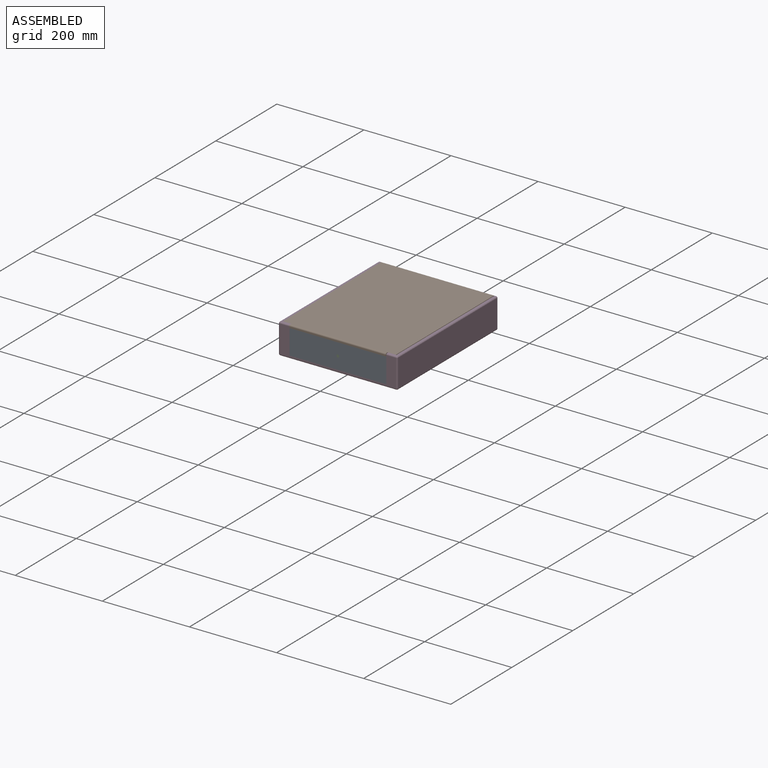
[diagram: assembled view]
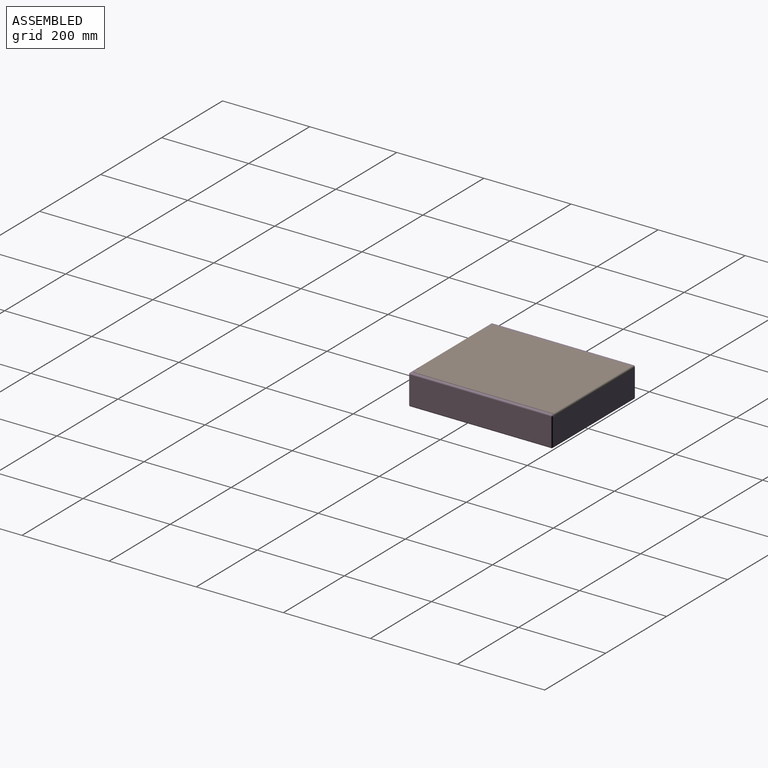
[diagram: assembled view, second angle]
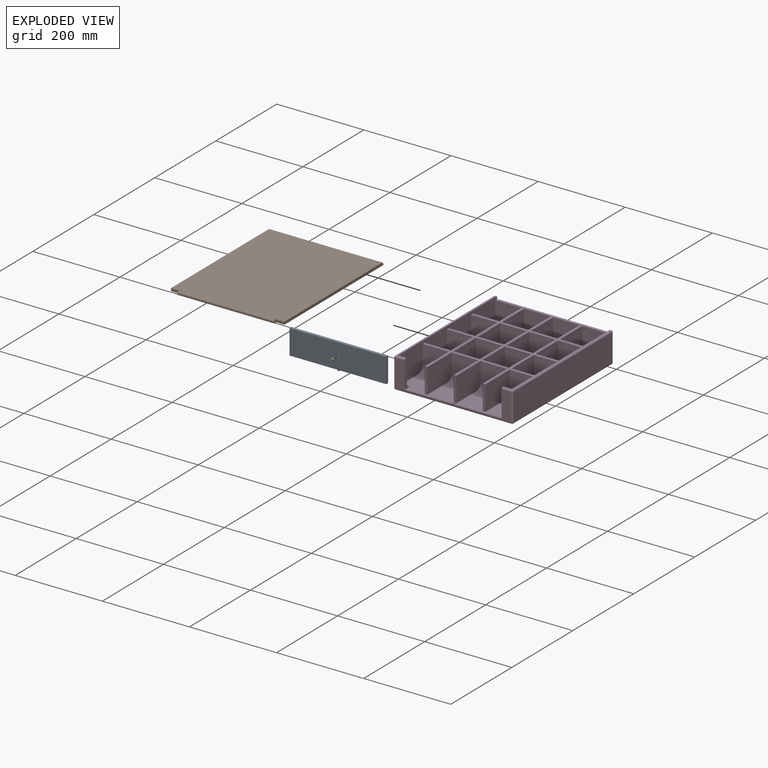
[diagram: exploded view]
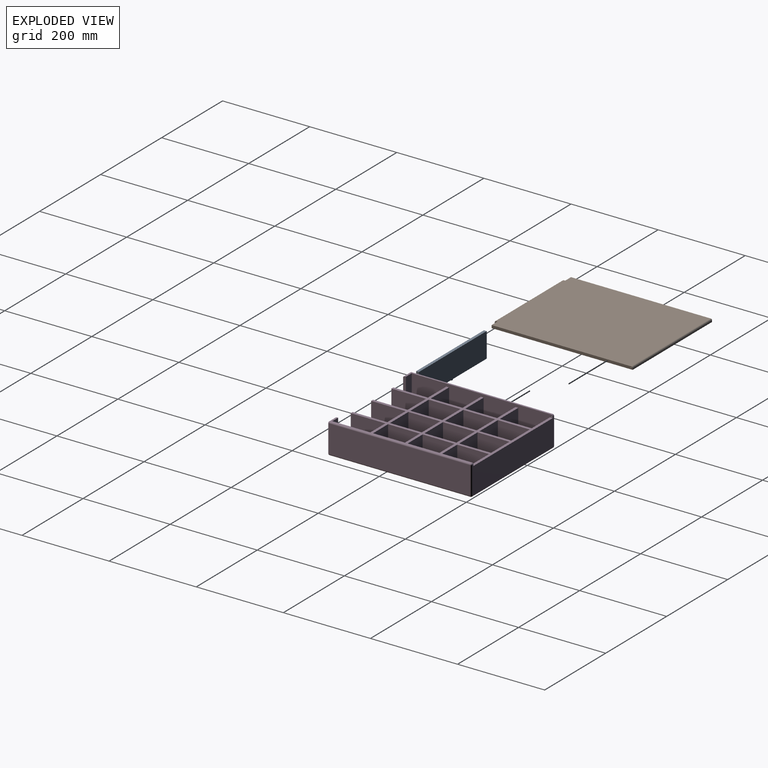
[diagram: exploded view, second angle]
ASSEMBLY  parts=4 mates=5
PART A: 13 faces, bbox 222.3x6.4x59.7 mm
  f0: plane 57.15x6.35mm, normal (-1,0,0), area 362.9mm2, adj f1,f3,f4,f5
  f1: plane 222.25x57.15mm, normal (0,-1,0), area 12669.9mm2, adj f0,f2,f4,f5,f11
  f2: plane 57.15x6.35mm, normal (1,0,0), area 362.9mm2, adj f1,f3,f4,f5
  f3: plane 222.25x57.15mm, normal (0,1,0), area 12701.6mm2, adj f0,f2,f4,f5
  f4: plane 222.25x6.35mm, normal (0,0,1), area 1411.3mm2, adj f0,f1,f2,f3
  f5: plane 222.25x6.35mm, normal (0,0,-1), area 1391.9mm2, adj f0,f1,f2,f3,f6,f7,f8,f9
  f6: plane 5.08x2.54mm, normal (0,-1,0), area 12.9mm2, adj f5,f7,f9,f10
  f7: plane 3.81x2.54mm, normal (-1,0,0), area 9.7mm2, adj f5,f6,f8,f10
  f8: plane 5.08x2.54mm, normal (0,1,0), area 12.9mm2, adj f5,f7,f9,f10
  f9: plane 3.81x2.54mm, normal (1,0,0), area 9.7mm2, adj f5,f6,f8,f10
  f10: plane 5.08x3.81mm, normal (0,0,-1), area 19.4mm2, adj f6,f7,f8,f9
  f11: cylinder r=3.17mm len=6.35mm, axis (0,-1,0), area 101.3mm2, adj f1,f12
  f12: plane 6.35x6.35mm, normal (0,-1,0), area 31.7mm2, adj f11
PART B: 16 faces, bbox 265.4x330.2x6.4 mm
  f0: plane 19.05x6.35mm, normal (0,-1,0), area 121mm2, adj f1,f7,f8,f9
  f1: plane 6.35x6.35mm, normal (-1,0,0), area 38.2mm2, adj f0,f2,f8,f9,f11
  f2: plane 222.25x3.18mm, normal (0,-1,0), area 705.6mm2, adj f1,f3,f9,f11
  f3: plane 6.35x6.35mm, normal (1,0,0), area 38.2mm2, adj f2,f4,f8,f9,f11
  f4: plane 19.05x6.35mm, normal (0,-1,0), area 121mm2, adj f3,f5,f8,f9
  f5: plane 323.85x6.35mm, normal (1,0,0), area 2049.2mm2, adj f4,f6,f8,f9,f10,f14
  f6: plane 260.35x3.18mm, normal (0,1,0), area 826.6mm2, adj f5,f7,f9,f10
  f7: plane 323.85x6.35mm, normal (-1,0,0), area 2049.2mm2, adj f0,f6,f8,f9,f10,f12
  f8: plane 323.85x260.35mm, normal (0,0,1), area 84193.4mm2, adj f0,f1,f3,f4,f5,f7,f10,f11
  f9: plane 330.2x260.35mm, normal (0,0,-1), area 85725.6mm2, adj f0,f1,f2,f3,f4,f5,f6,f7
  f10: cylinder r=3.17mm len=260.35mm, axis (1,0,0), area 1298.4mm2, adj f5,f6,f7,f8
  f11: cylinder r=3.17mm len=222.25mm, axis (-1,0,0), area 1108.4mm2, adj f1,f2,f3,f8
  f12: cylinder r=1.27mm len=2.54mm, axis (1,0,0), area 20.3mm2, adj f7,f13
  f13: plane 2.54x2.54mm, normal (-1,0,0), area 5.1mm2, adj f12
  f14: cylinder r=1.27mm len=2.54mm, axis (-1,0,0), area 20.3mm2, adj f5,f15
  f15: plane 2.54x2.54mm, normal (1,0,0), area 5.1mm2, adj f14
PART C: 3 faces, bbox 6.4x5.1x6.4 mm
  f0: cylinder r=3.17mm len=6.35mm, axis (0,1,0), area 101.3mm2, adj f1,f2
  f1: plane 6.35x6.35mm, normal (0,-1,0), area 31.7mm2, adj f0
  f2: plane 6.35x6.35mm, normal (0,1,0), area 31.7mm2, adj f0
PART D: 148 faces, bbox 273.1x330.2x69.9 mm
  f0: plane 60.33x47.63mm, normal (0,0,1), area 2873mm2, adj f64,f108,f109,f138
  f1: plane 60.33x47.63mm, normal (0,0,1), area 2873mm2, adj f64,f110,f111,f136
  f2: plane 60.33x47.63mm, normal (0,0,1), area 2873mm2, adj f64,f112,f114,f134
  f3: plane 60.33x44.45mm, normal (0,-1,0), area 2681.4mm2, adj f17,f92,f125,f135
  f4: plane 260.35x73.03mm, normal (0,0,1), area 16996.7mm2, adj f11,f28,f45,f53,f61,f64,f67,f68
  f5: plane 60.33x44.45mm, normal (0,1,0), area 2681.4mm2, adj f16,f92,f125,f135
  f6: plane 60.33x44.45mm, normal (0,-1,0), area 2681.4mm2, adj f15,f92,f127,f137
  f7: plane 60.33x44.45mm, normal (0,1,0), area 2681.4mm2, adj f14,f92,f127,f137
  f8: plane 60.33x44.45mm, normal (0,-1,0), area 2681.4mm2, adj f13,f92,f129,f139
  f9: plane 60.33x44.45mm, normal (0,1,0), area 2681.4mm2, adj f12,f92,f129,f139
  f10: plane 60.33x44.45mm, normal (0,-1,0), area 2681.4mm2, adj f11,f92,f132,f140
  f11: cylinder r=12.7mm len=60.33mm, axis (1,0,0), area 1203.4mm2, adj f4,f10,f132,f140
  f12: cylinder r=12.7mm len=60.33mm, axis (-1,0,0), area 1203.4mm2, adj f9,f18,f129,f139
  f13: cylinder r=12.7mm len=60.33mm, axis (1,0,0), area 1203.4mm2, adj f8,f18,f129,f139
  f14: cylinder r=12.7mm len=60.33mm, axis (-1,0,0), area 1203.4mm2, adj f7,f19,f127,f137
  f15: cylinder r=12.7mm len=60.33mm, axis (1,0,0), area 1203.4mm2, adj f6,f19,f127,f137
  f16: cylinder r=12.7mm len=60.33mm, axis (-1,0,0), area 1203.4mm2, adj f5,f20,f125,f135
  f17: cylinder r=12.7mm len=60.33mm, axis (-1,0,0), area 1203.4mm2, adj f3,f20,f125,f135
  f18: plane 60.33x47.63mm, normal (0,0,1), area 2873mm2, adj f12,f13,f129,f139
  f19: plane 60.33x47.63mm, normal (0,0,1), area 2873mm2, adj f14,f15,f127,f137
  f20: plane 60.33x47.63mm, normal (0,0,1), area 2873mm2, adj f16,f17,f125,f135
  f21: plane 60.33x44.45mm, normal (0,-1,0), area 2681.4mm2, adj f34,f92,f116,f126
  f22: plane 60.33x44.45mm, normal (0,1,0), area 2681.4mm2, adj f33,f92,f116,f126
  f23: plane 60.33x44.45mm, normal (0,-1,0), area 2681.4mm2, adj f32,f92,f118,f128
  f24: plane 60.33x44.45mm, normal (0,1,0), area 2681.4mm2, adj f31,f92,f118,f128
  f25: plane 60.33x44.45mm, normal (0,-1,0), area 2681.4mm2, adj f30,f92,f120,f130
  f26: plane 60.33x44.45mm, normal (0,1,0), area 2681.4mm2, adj f29,f92,f120,f130
  f27: plane 60.33x44.45mm, normal (0,-1,0), area 2681.4mm2, adj f28,f92,f122,f131
  f28: cylinder r=12.7mm len=60.33mm, axis (1,0,0), area 1203.4mm2, adj f4,f27,f122,f131
  f29: cylinder r=12.7mm len=60.33mm, axis (-1,0,0), area 1203.4mm2, adj f26,f35,f120,f130
  f30: cylinder r=12.7mm len=60.33mm, axis (1,0,0), area 1203.4mm2, adj f25,f35,f120,f130
  f31: cylinder r=12.7mm len=60.33mm, axis (-1,0,0), area 1203.4mm2, adj f24,f36,f118,f128
  f32: cylinder r=12.7mm len=60.33mm, axis (1,0,0), area 1203.4mm2, adj f23,f36,f118,f128
  f33: cylinder r=12.7mm len=60.33mm, axis (-1,0,0), area 1203.4mm2, adj f22,f37,f116,f126
  f34: cylinder r=12.7mm len=60.33mm, axis (-1,0,0), area 1203.4mm2, adj f21,f37,f116,f126
  f35: plane 60.33x47.63mm, normal (0,0,1), area 2873mm2, adj f29,f30,f120,f130
  f36: plane 60.33x47.63mm, normal (0,0,1), area 2873mm2, adj f31,f32,f118,f128
  f37: plane 60.33x47.63mm, normal (0,0,1), area 2873mm2, adj f33,f34,f116,f126
  f38: plane 60.33x44.45mm, normal (0,-1,0), area 2681.4mm2, adj f51,f53,f92,f117
  f39: plane 60.33x44.45mm, normal (0,1,0), area 2681.4mm2, adj f50,f53,f92,f117
  f40: plane 60.33x44.45mm, normal (0,-1,0), area 2681.4mm2, adj f49,f53,f92,f119
  f41: plane 60.33x44.45mm, normal (0,1,0), area 2681.4mm2, adj f48,f53,f92,f119
  f42: plane 60.33x44.45mm, normal (0,-1,0), area 2681.4mm2, adj f47,f53,f92,f121
  f43: plane 60.33x44.45mm, normal (0,1,0), area 2681.4mm2, adj f46,f53,f92,f121
  f44: plane 60.33x44.45mm, normal (0,-1,0), area 2681.4mm2, adj f45,f53,f92,f123
  f45: cylinder r=12.7mm len=60.33mm, axis (1,0,0), area 1203.4mm2, adj f4,f44,f53,f123
  f46: cylinder r=12.7mm len=60.33mm, axis (-1,0,0), area 1203.4mm2, adj f43,f52,f53,f121
  f47: cylinder r=12.7mm len=60.33mm, axis (1,0,0), area 1203.4mm2, adj f42,f52,f53,f121
  f48: cylinder r=12.7mm len=60.33mm, axis (-1,0,0), area 1203.4mm2, adj f41,f53,f54,f119
  f49: cylinder r=12.7mm len=60.33mm, axis (1,0,0), area 1203.4mm2, adj f40,f53,f54,f119
  f50: cylinder r=12.7mm len=60.33mm, axis (-1,0,0), area 1203.4mm2, adj f39,f53,f55,f117
  f51: cylinder r=12.7mm len=60.33mm, axis (-1,0,0), area 1203.4mm2, adj f38,f53,f55,f117
  f52: plane 60.33x47.63mm, normal (0,0,1), area 2873mm2, adj f46,f47,f53,f121
  f53: plane 323.85x63.5mm, normal (1,0,0), area 18828.7mm2, adj f4,f38,f39,f40,f41,f42,f43,f44
  f54: plane 60.33x47.63mm, normal (0,0,1), area 2873mm2, adj f48,f49,f53,f119
  f55: plane 60.33x47.63mm, normal (0,0,1), area 2873mm2, adj f50,f51,f53,f117
  f56: plane 323.85x22.23mm, normal (0,0,1), area 1088.7mm2, adj f64,f66,f68,f83,f86,f97
  f57: plane 266.7x63.5mm, normal (0,1,0), area 16108.8mm2, adj f53,f64,f71,f76,f81,f92,f97,f99
  f58: plane 323.85x22.23mm, normal (0,0,1), area 1088.7mm2, adj f53,f59,f67,f69,f70,f99
  f59: plane 50.8x19.05mm, normal (0,1,0), area 967.7mm2, adj f53,f58,f67,f113
  f60: plane 323.85x63.5mm, normal (-1,0,0), area 20564.5mm2, adj f69,f71,f74,f75
  f61: plane 266.7x63.5mm, normal (0,-1,0), area 3528.2mm2, adj f4,f67,f68,f70,f75,f80,f84,f86
  f62: plane 323.85x63.5mm, normal (1,0,0), area 20564.5mm2, adj f79,f81,f83,f84
  f63: plane 323.85x266.7mm, normal (0,0,-1), area 75403.1mm2, adj f74,f76,f79,f80,f143,f144,f146,f147
  f64: plane 323.85x63.5mm, normal (-1,0,0), area 18828.7mm2, adj f0,f1,f2,f4,f56,f57,f65,f66
  f65: plane 60.33x44.45mm, normal (0,-1,0), area 2681.4mm2, adj f64,f92,f114,f134
  f66: plane 50.8x19.05mm, normal (0,1,0), area 967.7mm2, adj f56,f64,f68,f115
  f67: plane 63.5x19.05mm, normal (1,0,0), area 435.7mm2, adj f4,f58,f59,f61,f70,f113
  f68: plane 63.5x19.05mm, normal (-1,0,0), area 435.7mm2, adj f4,f56,f61,f66,f86,f115
  f69: cylinder r=3.17mm len=323.85mm, axis (0,1,0), area 1615.1mm2, adj f58,f60,f72,f100
  f70: cylinder r=3.17mm len=22.23mm, axis (-1,0,0), area 110.8mm2, adj f58,f61,f67,f72
  f71: cylinder r=3.17mm len=63.5mm, axis (0,0,1), area 316.7mm2, adj f57,f60,f73,f100
  f72: sphere r=3.17mm, area 15.8mm2, adj f69,f70,f75
  f73: sphere r=3.17mm, area 15.8mm2, adj f71,f74,f76
  f74: cylinder r=3.17mm len=323.85mm, axis (0,-1,0), area 1615.1mm2, adj f60,f63,f73,f77
  f75: cylinder r=3.17mm len=63.5mm, axis (0,0,-1), area 316.7mm2, adj f60,f61,f72,f77
  f76: cylinder r=3.17mm len=266.7mm, axis (-1,0,0), area 1330.1mm2, adj f57,f63,f73,f78
  f77: sphere r=3.17mm, area 15.8mm2, adj f74,f75,f80
  f78: sphere r=3.17mm, area 15.8mm2, adj f76,f79,f81
  f79: cylinder r=3.17mm len=323.85mm, axis (0,1,0), area 1615.1mm2, adj f62,f63,f78,f82
  f80: cylinder r=3.17mm len=266.7mm, axis (1,0,0), area 1330.1mm2, adj f61,f63,f77,f82
  f81: cylinder r=3.17mm len=63.5mm, axis (0,0,-1), area 316.7mm2, adj f57,f62,f78,f98
  f82: sphere r=3.17mm, area 15.8mm2, adj f79,f80,f84
  f83: cylinder r=3.17mm len=323.85mm, axis (0,-1,0), area 1615.1mm2, adj f56,f62,f85,f98
  f84: cylinder r=3.17mm len=63.5mm, axis (0,0,1), area 316.7mm2, adj f61,f62,f82,f85
  f85: sphere r=3.17mm, area 15.8mm2, adj f83,f84,f86
  f86: cylinder r=3.17mm len=22.23mm, axis (-1,0,0), area 110.8mm2, adj f56,f61,f68,f85
  f87: plane 5.08x2.54mm, normal (0,-1,0), area 12.9mm2, adj f4,f88,f90,f91
  f88: plane 3.81x2.54mm, normal (1,0,0), area 9.7mm2, adj f4,f87,f89,f91
  f89: plane 5.08x2.54mm, normal (0,1,0), area 12.9mm2, adj f4,f88,f90,f91
  f90: plane 3.81x2.54mm, normal (-1,0,0), area 9.7mm2, adj f4,f87,f89,f91
  f91: plane 5.08x3.81mm, normal (0,0,1), area 19.4mm2, adj f87,f88,f89,f90
  f92: plane 323.85x260.35mm, normal (0,0,1), area 12298.4mm2, adj f3,f5,f6,f7,f8,f9,f10,f21
  f93: cylinder r=1.27mm len=2.54mm, axis (1,0,0), area 20.3mm2, adj f53,f94
  f94: plane 2.54x2.54mm, normal (1,0,0), area 5.1mm2, adj f93
  f95: cylinder r=1.27mm len=2.54mm, axis (-1,0,0), area 20.3mm2, adj f64,f96
  f96: plane 2.54x2.54mm, normal (-1,0,0), area 5.1mm2, adj f95
  f97: cylinder r=3.17mm len=3.18mm, axis (1,0,0), area 15.8mm2, adj f56,f57,f64,f98
  f98: sphere r=3.17mm, area 15.8mm2, adj f81,f83,f97
  f99: cylinder r=3.17mm len=3.18mm, axis (1,0,0), area 15.8mm2, adj f53,f57,f58,f100
  f100: sphere r=3.17mm, area 15.8mm2, adj f69,f71,f99
  f101: plane 60.33x44.45mm, normal (0,1,0), area 2681.4mm2, adj f64,f92,f112,f134
  f102: plane 60.33x44.45mm, normal (0,-1,0), area 2681.4mm2, adj f64,f92,f111,f136
  f103: plane 60.33x44.45mm, normal (0,1,0), area 2681.4mm2, adj f64,f92,f110,f136
  f104: plane 60.33x44.45mm, normal (0,-1,0), area 2681.4mm2, adj f64,f92,f109,f138
  f105: plane 60.33x44.45mm, normal (0,1,0), area 2681.4mm2, adj f64,f92,f108,f138
  f106: plane 60.33x44.45mm, normal (0,-1,0), area 2681.4mm2, adj f64,f92,f107,f141
  f107: cylinder r=12.7mm len=60.33mm, axis (1,0,0), area 1203.4mm2, adj f4,f64,f106,f141
  f108: cylinder r=12.7mm len=60.33mm, axis (-1,0,0), area 1203.4mm2, adj f0,f64,f105,f138
  f109: cylinder r=12.7mm len=60.33mm, axis (1,0,0), area 1203.4mm2, adj f0,f64,f104,f138
  f110: cylinder r=12.7mm len=60.33mm, axis (-1,0,0), area 1203.4mm2, adj f1,f64,f103,f136
  f111: cylinder r=12.7mm len=60.33mm, axis (1,0,0), area 1203.4mm2, adj f1,f64,f102,f136
  f112: cylinder r=12.7mm len=60.33mm, axis (-1,0,0), area 1203.4mm2, adj f2,f64,f101,f134
  f113: cylinder r=12.7mm len=19.05mm, axis (1,0,0), area 380mm2, adj f4,f53,f59,f67
  f114: cylinder r=12.7mm len=60.33mm, axis (-1,0,0), area 1203.4mm2, adj f2,f64,f65,f134
  f115: cylinder r=12.7mm len=19.05mm, axis (1,0,0), area 380mm2, adj f4,f64,f66,f68
  f116: plane 73.03x57.15mm, normal (1,0,0), area 4104.2mm2, adj f21,f22,f33,f34,f37,f92
  f117: plane 73.03x57.15mm, normal (-1,0,0), area 4104.2mm2, adj f38,f39,f50,f51,f55,f92
  f118: plane 73.03x57.15mm, normal (1,0,0), area 4104.2mm2, adj f23,f24,f31,f32,f36,f92
  f119: plane 73.03x57.15mm, normal (-1,0,0), area 4104.2mm2, adj f40,f41,f48,f49,f54,f92
  f120: plane 73.03x57.15mm, normal (1,0,0), area 4104.2mm2, adj f25,f26,f29,f30,f35,f92
  f121: plane 73.03x57.15mm, normal (-1,0,0), area 4104.2mm2, adj f42,f43,f46,f47,f52,f92
  f122: plane 79.38x57.15mm, normal (1,0,0), area 4501.7mm2, adj f4,f27,f28,f92,f124
  f123: plane 79.38x57.15mm, normal (-1,0,0), area 4501.7mm2, adj f4,f44,f45,f92,f124
  f124: plane 57.15x6.35mm, normal (0,-1,0), area 362.9mm2, adj f4,f92,f122,f123
  f125: plane 73.03x57.15mm, normal (1,0,0), area 4104.2mm2, adj f3,f5,f16,f17,f20,f92
  f126: plane 73.03x57.15mm, normal (-1,0,0), area 4104.2mm2, adj f21,f22,f33,f34,f37,f92
  f127: plane 73.03x57.15mm, normal (1,0,0), area 4104.2mm2, adj f6,f7,f14,f15,f19,f92
  f128: plane 73.03x57.15mm, normal (-1,0,0), area 4104.2mm2, adj f23,f24,f31,f32,f36,f92
  f129: plane 73.03x57.15mm, normal (1,0,0), area 4104.2mm2, adj f8,f9,f12,f13,f18,f92
  f130: plane 73.03x57.15mm, normal (-1,0,0), area 4104.2mm2, adj f25,f26,f29,f30,f35,f92
  f131: plane 79.38x57.15mm, normal (-1,0,0), area 4501.7mm2, adj f4,f27,f28,f92,f133
  f132: plane 79.38x57.15mm, normal (1,0,0), area 4501.7mm2, adj f4,f10,f11,f92,f133
  f133: plane 57.15x6.35mm, normal (0,-1,0), area 362.9mm2, adj f4,f92,f131,f132
  f134: plane 73.03x57.15mm, normal (1,0,0), area 4104.2mm2, adj f2,f65,f92,f101,f112,f114
  f135: plane 73.03x57.15mm, normal (-1,0,0), area 4104.2mm2, adj f3,f5,f16,f17,f20,f92
  f136: plane 73.03x57.15mm, normal (1,0,0), area 4104.2mm2, adj f1,f92,f102,f103,f110,f111
  f137: plane 73.03x57.15mm, normal (-1,0,0), area 4104.2mm2, adj f6,f7,f14,f15,f19,f92
  f138: plane 73.03x57.15mm, normal (1,0,0), area 4104.2mm2, adj f0,f92,f104,f105,f108,f109
  f139: plane 73.03x57.15mm, normal (-1,0,0), area 4104.2mm2, adj f8,f9,f12,f13,f18,f92
  f140: plane 79.38x57.15mm, normal (-1,0,0), area 4501.7mm2, adj f4,f10,f11,f92,f142
  f141: plane 79.38x57.15mm, normal (1,0,0), area 4501.7mm2, adj f4,f92,f106,f107,f142
  f142: plane 57.15x6.35mm, normal (0,-1,0), area 362.9mm2, adj f4,f92,f140,f141
  f143: plane 50.8x5.08mm, normal (1,0,0), area 239.6mm2, adj f63,f145,f146,f147
  f144: plane 50.8x5.08mm, normal (-1,0,0), area 239.6mm2, adj f63,f145,f146,f147
  f145: plane 215.9x40.64mm, normal (0,0,-1), area 8774.2mm2, adj f143,f144,f146,f147
  f146: cylinder r=5.08mm len=215.9mm, axis (1,0,0), area 1722.8mm2, adj f63,f143,f144,f145
  f147: plane 215.9x5.08mm, normal (0,-0.71,-0.71), area 1551.1mm2, adj f63,f143,f144,f145
PLACE A t=(218.37,-90.32,120.39)mm
PLACE B t=(-143.04,-119.2,177.54)mm
PLACE C t=(-11.6,-120.47,148.96)mm
PLACE D t=(230.01,-125.55,114.04)mm
MATE slider C.f0 <-> A.f11  axis (0,-1,0) through (-11.6,-125.55,148.96)mm
MATE planar D.f67 <-> A.f0  axis (1,0,0) through (-122.72,-121.89,149.69)mm
MATE pin_slot A.f10 <-> D.f91  axis (0,0,-1) through (-11.6,-122.38,117.85)mm
MATE planar C.f0 <-> A.f11  axis (0,-1,0) through (-11.6,-125.55,148.96)mm
MATE revolute B.f10 <-> D.f97  axis (1,0,0) through (119.85,201.47,180.71)mm
